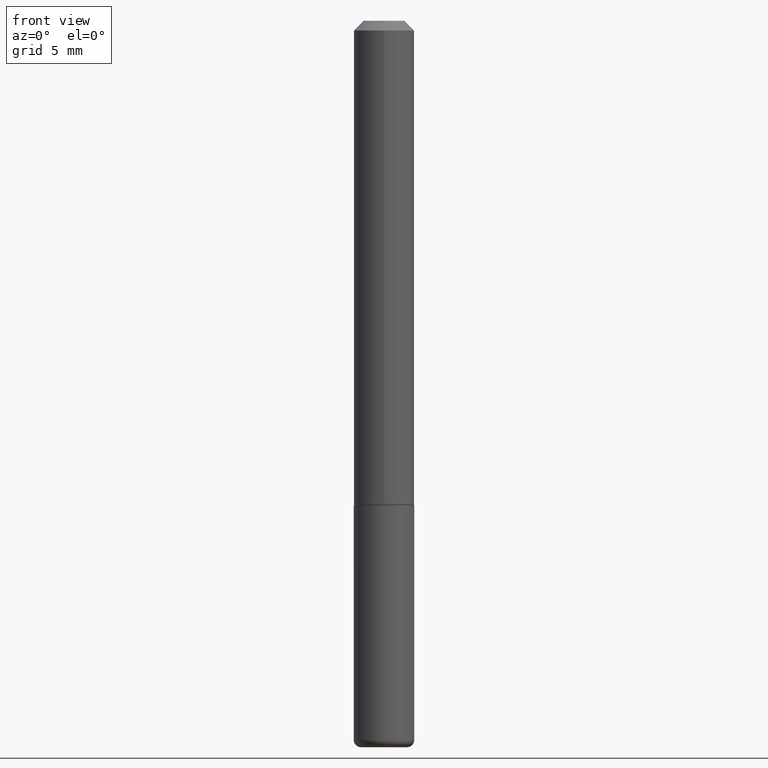
[diagram: clean part render]
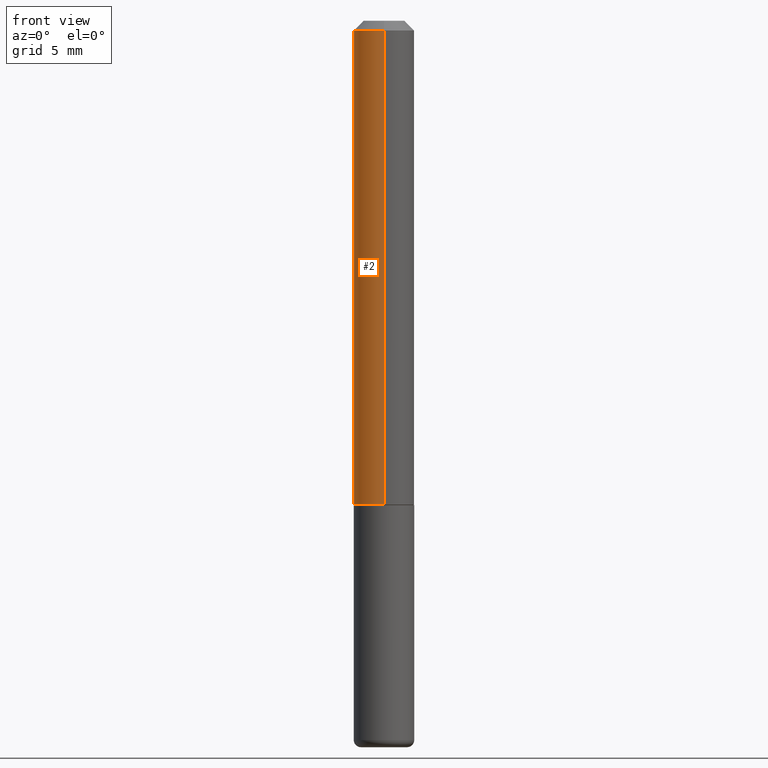
[diagram: same view with one face highlighted and labeled with its STEP entity id]
A machine part, front view. The second image highlights one B-rep face of the part: STEP entity #2.
In plain terms, the highlighted cylindrical surface (edge-blend (fillet) strip) has radius 1.5875 mm, axis along (-0, 0, 1).
Its self-contained STEP definition (entity closure, byte-faithful):
#2 = ADVANCED_FACE ( 'NONE', ( #196 ), #301, .T. ) ;
#3 = VERTEX_POINT ( 'NONE', #279 ) ;
#9 = DIRECTION ( 'NONE',  ( -2.465987266474309438E-29, 3.462097735870816064E-15, 1.000000000000000000 ) ) ;
#30 = DIRECTION ( 'NONE',  ( -2.465987266474309438E-29, 3.462097735870816064E-15, 1.000000000000000000 ) ) ;
#45 = VECTOR ( 'NONE', #30, 39.37007874015748143 ) ;
#53 = AXIS2_PLACEMENT_3D ( 'NONE', #132, #225, #64 ) ;
#56 = CARTESIAN_POINT ( 'NONE',  ( 4.440892098500625669E-16, 0.06250000000000000000, -2.163811084919260040E-16 ) ) ;
#61 = LINE ( 'NONE', #56, #247 ) ;
#64 = DIRECTION ( 'NONE',  ( -6.982962677686265922E-15, -1.000000000000000000, 3.483106191921938315E-15 ) ) ;
#69 = CARTESIAN_POINT ( 'NONE',  ( -4.364351673553916201E-16, -0.06250000000000000000, 2.163811084919260040E-16 ) ) ;
#76 = DIRECTION ( 'NONE',  ( -2.465987266474309438E-29, 3.462097735870816064E-15, 1.000000000000000000 ) ) ;
#84 = DIRECTION ( 'NONE',  ( -2.465987266474309438E-29, 3.462097735870816064E-15, 1.000000000000000000 ) ) ;
#132 = CARTESIAN_POINT ( 'NONE',  ( 4.931974532948636112E-31, -6.924195471741654906E-17, -0.02000000000000006981 ) ) ;
#173 = ORIENTED_EDGE ( 'NONE', *, *, #254, .F. ) ;
#188 = CARTESIAN_POINT ( 'NONE',  ( 4.440892098500753366E-16, 0.06249999999999659300, -0.9990000000000002212 ) ) ;
#196 = FACE_OUTER_BOUND ( 'NONE', #352, .T. ) ;
#203 = ORIENTED_EDGE ( 'NONE', *, *, #393, .F. ) ;
#207 = CARTESIAN_POINT ( 'NONE',  ( 4.364351673553917187E-16, 0.06249999999999988204, -0.02000000000000028491 ) ) ;
#214 = EDGE_CURVE ( 'NONE', #395, #3, #237, .T. ) ;
#225 = DIRECTION ( 'NONE',  ( -2.465987266474309438E-29, 3.462097735870816064E-15, 1.000000000000000000 ) ) ;
#227 = LINE ( 'NONE', #69, #45 ) ;
#233 = VERTEX_POINT ( 'NONE', #207 ) ;
#237 = CIRCLE ( 'NONE', #392, 0.06250000000000005551 ) ;
#247 = VECTOR ( 'NONE', #76, 39.37007874015748143 ) ;
#254 = EDGE_CURVE ( 'NONE', #395, #233, #61, .T. ) ;
#279 = CARTESIAN_POINT ( 'NONE',  ( -4.364351673553674119E-16, -0.06250000000000351108, -0.9989999999999996660 ) ) ;
#280 = CARTESIAN_POINT ( 'NONE',  ( -4.287811248607198352E-16, -0.06250000000000001388, -0.01999999999999985123 ) ) ;
#301 = CYLINDRICAL_SURFACE ( 'NONE', #357, 0.06250000000000000000 ) ;
#307 = CARTESIAN_POINT ( 'NONE',  ( 2.463521279207835223E-29, -3.458635638134944801E-15, -0.9989999999999998881 ) ) ;
#325 = CIRCLE ( 'NONE', #53, 0.06249999999999995143 ) ;
#349 = VERTEX_POINT ( 'NONE', #280 ) ;
#352 = EDGE_LOOP ( 'NONE', ( #173, #418, #386, #203 ) ) ;
#357 = AXIS2_PLACEMENT_3D ( 'NONE', #366, #84, #381 ) ;
#366 = CARTESIAN_POINT ( 'NONE',  ( 0.000000000000000000, 0.000000000000000000, 0.000000000000000000 ) ) ;
#381 = DIRECTION ( 'NONE',  ( -6.982962677686265922E-15, -1.000000000000000000, 3.462097735870816064E-15 ) ) ;
#386 = ORIENTED_EDGE ( 'NONE', *, *, #408, .T. ) ;
#392 = AXIS2_PLACEMENT_3D ( 'NONE', #307, #9, #405 ) ;
#393 = EDGE_CURVE ( 'NONE', #233, #349, #325, .T. ) ;
#395 = VERTEX_POINT ( 'NONE', #188 ) ;
#405 = DIRECTION ( 'NONE',  ( -6.982962677686266711E-15, -1.000000000000000000, 4.370956789862817205E-15 ) ) ;
#408 = EDGE_CURVE ( 'NONE', #3, #349, #227, .T. ) ;
#418 = ORIENTED_EDGE ( 'NONE', *, *, #214, .T. ) ;